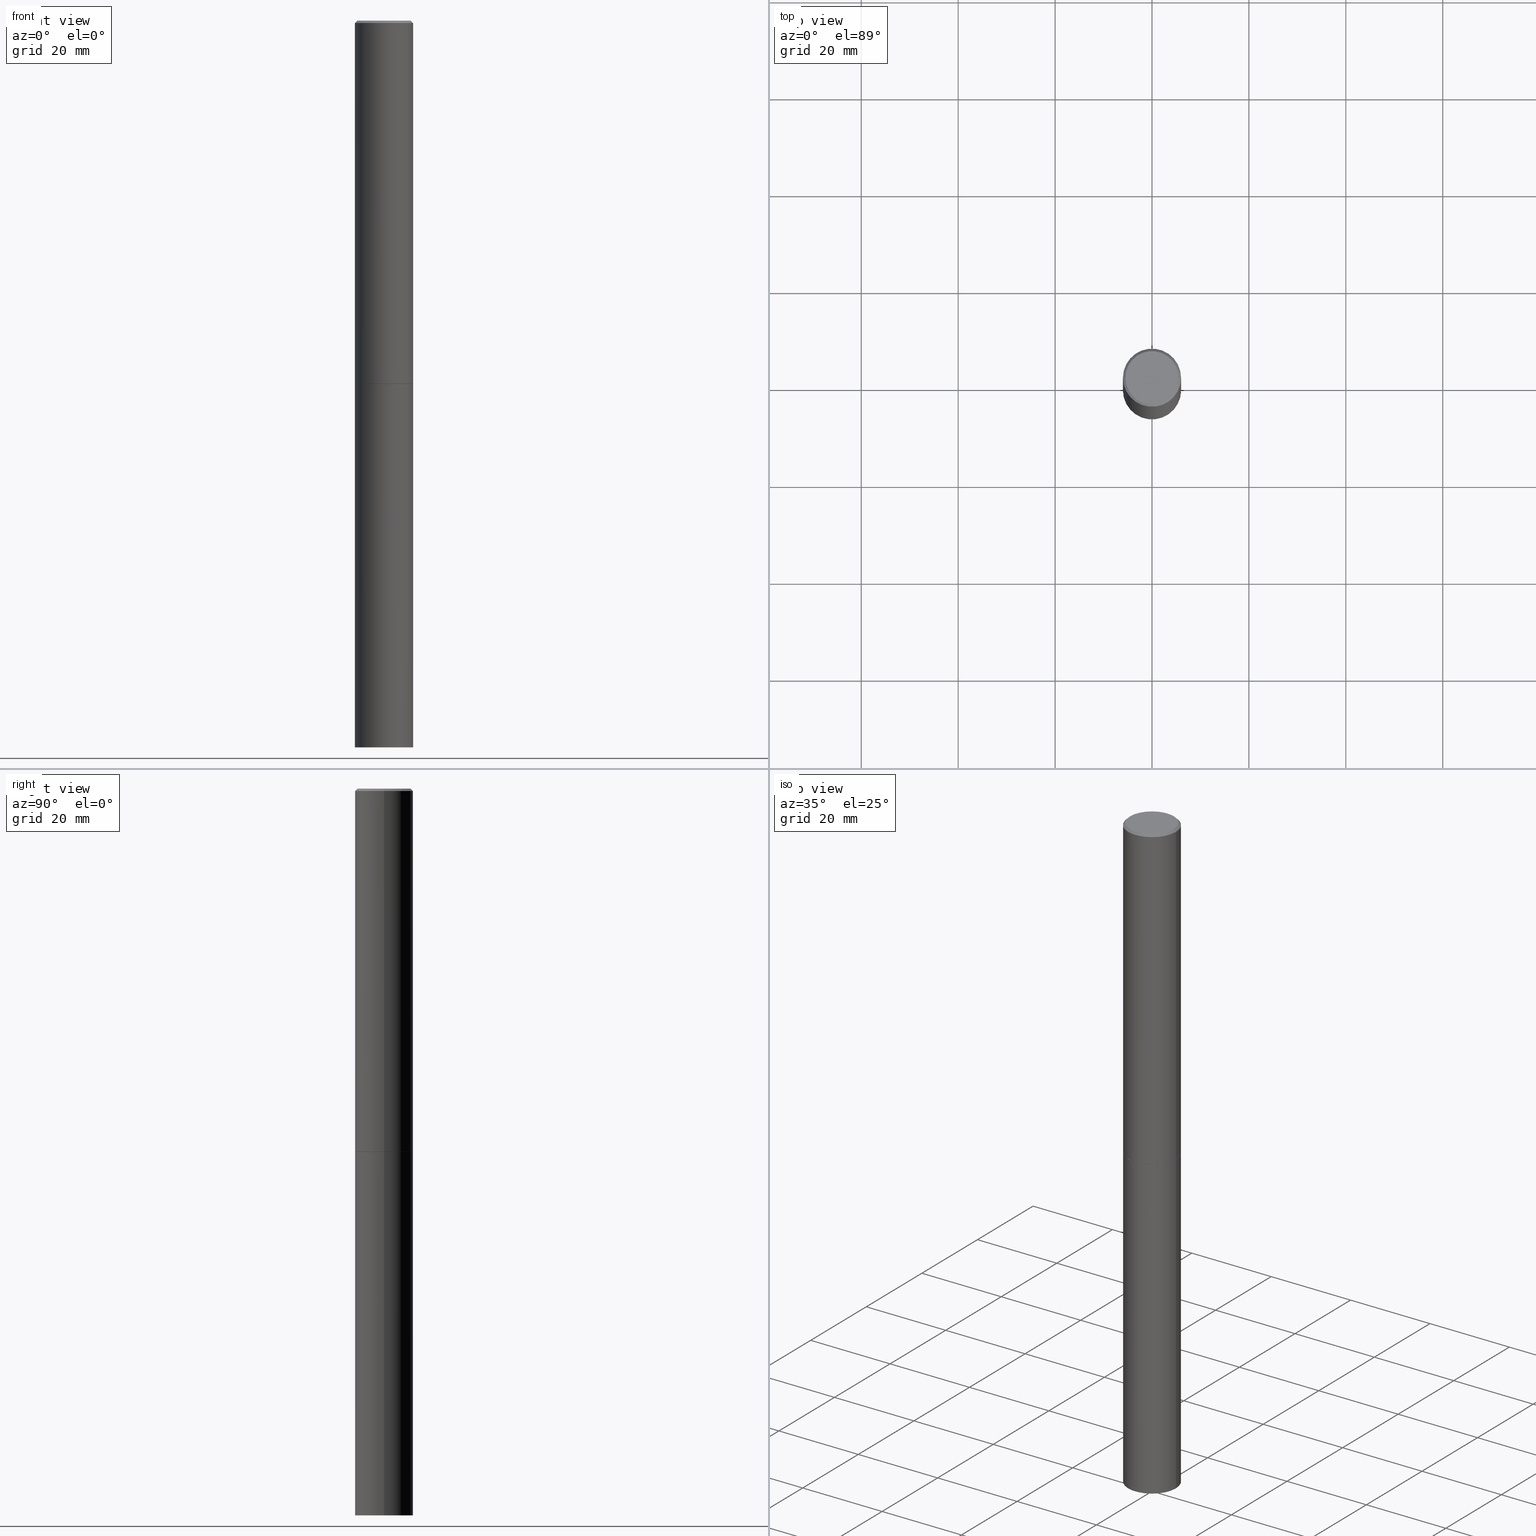
[diagram: canonical four-view strip — front | top / right | iso, engineering-drawing reading convention]
A machine part, canonical four-view strip (front | top / right | iso — engineering-drawing reading convention). The complete STEP part file that produces these views, byte-faithful:
ISO-10303-21;
HEADER;
FILE_DESCRIPTION (( 'STEP AP203' ),
    '1' );
FILE_NAME ('43545.STEP',
    '2024-02-28T04:59:49',
    ( '' ),
    ( '' ),
    'SwSTEP 2.0',
    'SolidWorks 2023',
    '' );
FILE_SCHEMA (( 'CONFIG_CONTROL_DESIGN' ));
ENDSEC;

DATA;
#1 = CLOSED_SHELL ( 'NONE', ( #190, #287, #167, #200 ) ) ;
#2 = ORGANIZATION ( 'UNSPECIFIED', 'UNSPECIFIED', '' ) ;
#3 = EDGE_CURVE ( 'NONE', #149, #126, #239, .T. ) ;
#4 = CARTESIAN_POINT ( 'NONE',  ( -1.043851414335219820E-46, 1.490343170380447200E-32, 4.268512490100411279E-18 ) ) ;
#5 = EDGE_LOOP ( 'NONE', ( #17, #94, #68, #92 ) ) ;
#6 = DIRECTION ( 'NONE',  ( -1.000000000000000000, 6.982962677686266711E-15, 0.000000000000000000 ) ) ;
#7 = ADVANCED_FACE ( 'NONE', ( #296 ), #314, .T. ) ;
#8 = AXIS2_PLACEMENT_3D ( 'NONE', #260, #288, #29 ) ;
#9 = DIRECTION ( 'NONE',  ( -2.445468806185136597E-29, 3.491481338843145583E-15, 1.000000000000000000 ) ) ;
#10 = ORIENTED_EDGE ( 'NONE', *, *, #341, .T. ) ;
#11 = PERSON_AND_ORGANIZATION ( #95, #2 ) ;
#12 = ORIENTED_EDGE ( 'NONE', *, *, #229, .F. ) ;
#13 = SHAPE_DEFINITION_REPRESENTATION ( #242, #146 ) ;
#14 = ORIENTED_EDGE ( 'NONE', *, *, #86, .F. ) ;
#15 = LOCAL_TIME ( 23, 59, 49.00000000000000000, #157 ) ;
#16 = EDGE_CURVE ( 'NONE', #144, #39, #204, .T. ) ;
#17 = ORIENTED_EDGE ( 'NONE', *, *, #20, .T. ) ;
#18 = DIRECTION ( 'NONE',  ( 1.000000000000000000, -6.982962677686266711E-15, 0.000000000000000000 ) ) ;
#19 = DIRECTION ( 'NONE',  ( -2.438088387897960049E-29, 3.491481338843145188E-15, 1.000000000000000000 ) ) ;
#20 = EDGE_CURVE ( 'NONE', #346, #88, #168, .T. ) ;
#21 = VECTOR ( 'NONE', #56, 39.37007874015748143 ) ;
#22 = CYLINDRICAL_SURFACE ( 'NONE', #30, 0.2361999999999998545 ) ;
#23 = LOCAL_TIME ( 23, 59, 49.00000000000000000, #175 ) ;
#24 = CARTESIAN_POINT ( 'NONE',  ( 0.000000000000000000, 0.000000000000000000, 0.000000000000000000 ) ) ;
#25 = CARTESIAN_POINT ( 'NONE',  ( 0.000000000000000000, 0.000000000000000000, 0.000000000000000000 ) ) ;
#26 = DIRECTION ( 'NONE',  ( -2.445468806185136597E-29, 3.491481338843145583E-15, 1.000000000000000000 ) ) ;
#27 = DIRECTION ( 'NONE',  ( -1.000000000000000000, 6.982962677686265922E-15, -4.876176775795935793E-29 ) ) ;
#28 = DIRECTION ( 'NONE',  ( 2.438088387897960049E-29, -3.491481338843145188E-15, -1.000000000000000000 ) ) ;
#29 = DIRECTION ( 'NONE',  ( 1.000000000000000000, -6.982962677686265133E-15, 0.000000000000000000 ) ) ;
#30 = AXIS2_PLACEMENT_3D ( 'NONE', #359, #277, #77 ) ;
#31 = DIRECTION ( 'NONE',  ( -1.000000000000000000, 6.982962677686265922E-15, -4.876176775795935793E-29 ) ) ;
#32 = LINE ( 'NONE', #256, #300 ) ;
#33 = CC_DESIGN_PERSON_AND_ORGANIZATION_ASSIGNMENT ( #121, #246, ( #50 ) ) ;
#34 = EDGE_LOOP ( 'NONE', ( #208, #264, #42, #151 ) ) ;
#35 = DIRECTION ( 'NONE',  ( 0.7071067811866199593, -2.468850131083015945E-15, 0.7071067811864750752 ) ) ;
#36 = APPROVAL_STATUS ( 'not_yet_approved' ) ;
#37 = CARTESIAN_POINT ( 'NONE',  ( 7.220735744022852519E-29, -1.030929694920215502E-14, -2.952700000000000102 ) ) ;
#38 = DATE_TIME_ROLE ( 'creation_date' ) ;
#39 = VERTEX_POINT ( 'NONE', #209 ) ;
#40 = ADVANCED_FACE ( 'NONE', ( #182 ), #43, .F. ) ;
#41 = VERTEX_POINT ( 'NONE', #203 ) ;
#42 = ORIENTED_EDGE ( 'NONE', *, *, #136, .T. ) ;
#43 = PLANE ( 'NONE',  #194 ) ;
#44 = APPROVAL ( #358, 'UNSPECIFIED' ) ;
#45 = COORDINATED_UNIVERSAL_TIME_OFFSET ( 5, 0, .BEHIND. ) ;
#46 = CARTESIAN_POINT ( 'NONE',  ( 7.220735744022852519E-29, -1.030929694920215502E-14, -2.952700000000000102 ) ) ;
#47 = DATE_AND_TIME ( #81, #23 ) ;
#48 = AXIS2_PLACEMENT_3D ( 'NONE', #84, #184, #27 ) ;
#49 = DIRECTION ( 'NONE',  ( 1.000000000000000000, -6.982962677686266711E-15, 4.876176775795936353E-29 ) ) ;
#50 = SECURITY_CLASSIFICATION ( '', '', #127 ) ;
#51 = COORDINATED_UNIVERSAL_TIME_OFFSET ( 5, 0, .BEHIND. ) ;
#52 = DIRECTION ( 'NONE',  ( -2.445468806185136877E-29, 3.491481338843145188E-15, 1.000000000000000000 ) ) ;
#53 = CARTESIAN_POINT ( 'NONE',  ( 0.2351999999999999924, -1.195168977099396553E-14, -2.952700000000000102 ) ) ;
#54 = CARTESIAN_POINT ( 'NONE',  ( -0.2361999999999997712, 1.579546157692631452E-15, -0.02000000000000007674 ) ) ;
#55 = LOCAL_TIME ( 23, 59, 49.00000000000000000, #302 ) ;
#56 = DIRECTION ( 'NONE',  ( -2.445468806185136877E-29, 3.491481338843145188E-15, 1.000000000000000000 ) ) ;
#57 = UNCERTAINTY_MEASURE_WITH_UNIT (LENGTH_MEASURE( 1.000000000000000082E-05 ), #366, 'distance_accuracy_value', 'NONE');
#58 = PLANE ( 'NONE',  #118 ) ;
#59 = AXIS2_PLACEMENT_3D ( 'NONE', #162, #255, #164 ) ;
#60 = ADVANCED_FACE ( 'NONE', ( #279 ), #22, .T. ) ;
#61 = DIRECTION ( 'NONE',  ( 1.000000000000000000, -6.982962677686266711E-15, 0.000000000000000000 ) ) ;
#62 = DIRECTION ( 'NONE',  ( 1.000000000000000000, -6.982962677686267499E-15, 4.876217060660161841E-29 ) ) ;
#63 = EDGE_LOOP ( 'NONE', ( #174, #71, #72, #176 ) ) ;
#64 = CALENDAR_DATE ( 2024, 27, 2 ) ;
#65 = ORIENTED_EDGE ( 'NONE', *, *, #297, .T. ) ;
#66 = AXIS2_PLACEMENT_3D ( 'NONE', #25, #108, #221 ) ;
#67 = PERSON_AND_ORGANIZATION ( #95, #2 ) ;
#68 = ORIENTED_EDGE ( 'NONE', *, *, #315, .F. ) ;
#69 = DESIGN_CONTEXT ( 'detailed design', #106, 'design' ) ;
#70 = CC_DESIGN_DATE_AND_TIME_ASSIGNMENT ( #91, #38, ( #74 ) ) ;
#71 = ORIENTED_EDGE ( 'NONE', *, *, #147, .T. ) ;
#72 = ORIENTED_EDGE ( 'NONE', *, *, #142, .T. ) ;
#73 = CIRCLE ( 'NONE', #281, 0.2361999999999999933 ) ;
#74 = PRODUCT_DEFINITION ( 'UNKNOWN', '', #220, #69 ) ;
#75 = CARTESIAN_POINT ( 'NONE',  ( 7.218290275216666916E-29, -1.030580546786331359E-14, -2.951700000000000212 ) ) ;
#76 = DIRECTION ( 'NONE',  ( 0.000000000000000000, 0.000000000000000000, 1.000000000000000000 ) ) ;
#77 = DIRECTION ( 'NONE',  ( 1.000000000000000000, -6.982962677686266711E-15, 4.876176775795935793E-29 ) ) ;
#78 = DATE_AND_TIME ( #329, #344 ) ;
#79 = DIRECTION ( 'NONE',  ( -1.000000000000000000, 6.982962677686265922E-15, -4.876176775795935793E-29 ) ) ;
#80 = MANIFOLD_SOLID_BREP ( 'Body-Move/Copy2[2]', #252 ) ;
#81 = CALENDAR_DATE ( 2024, 27, 2 ) ;
#82 = CARTESIAN_POINT ( 'NONE',  ( -0.2361999999999998545, 1.678301941865355605E-15, -1.161852468318208056E-29 ) ) ;
#83 = EDGE_CURVE ( 'NONE', #41, #290, #87, .T. ) ;
#84 = CARTESIAN_POINT ( 'NONE',  ( 1.509716530915768746E-15, 0.2161999999999997257, -7.527240092128370190E-16 ) ) ;
#85 = CYLINDRICAL_SURFACE ( 'NONE', #128, 0.2361999999999999933 ) ;
#86 = EDGE_CURVE ( 'NONE', #126, #149, #236, .T. ) ;
#87 = CIRCLE ( 'NONE', #96, 0.2161999999999997257 ) ;
#88 = VERTEX_POINT ( 'NONE', #135 ) ;
#89 = CIRCLE ( 'NONE', #8, 0.2361999999999999933 ) ;
#90 = FACE_OUTER_BOUND ( 'NONE', #312, .T. ) ;
#91 = DATE_AND_TIME ( #64, #55 ) ;
#92 = ORIENTED_EDGE ( 'NONE', *, *, #107, .F. ) ;
#93 = DATE_AND_TIME ( #119, #271 ) ;
#94 = ORIENTED_EDGE ( 'NONE', *, *, #229, .T. ) ;
#95 = PERSON ( 'UNSPECIFIED', 'UNSPECIFIED', 'UNSPECIFIED', ('UNSPECIFIED'), ('UNSPECIFIED'), ('UNSPECIFIED') ) ;
#96 = AXIS2_PLACEMENT_3D ( 'NONE', #335, #129, #247 ) ;
#97 = APPROVAL_PERSON_ORGANIZATION ( #233, #161, #275 ) ;
#98 = VERTEX_POINT ( 'NONE', #254 ) ;
#99 = ORIENTED_EDGE ( 'NONE', *, *, #308, .F. ) ;
#100 = ADVANCED_FACE ( 'NONE', ( #336 ), #189, .F. ) ;
#101 = DIRECTION ( 'NONE',  ( -2.445468806185136597E-29, 3.491481338843145583E-15, 1.000000000000000000 ) ) ;
#102 = VERTEX_POINT ( 'NONE', #137 ) ;
#103 = APPLICATION_PROTOCOL_DEFINITION ( 'international standard', 'config_control_design', 1994, #106 ) ;
#104 = FACE_OUTER_BOUND ( 'NONE', #206, .T. ) ;
#105 = CARTESIAN_POINT ( 'NONE',  ( 0.2361999999999998545, -1.649375784469495145E-15, 1.151752954442999387E-29 ) ) ;
#106 = APPLICATION_CONTEXT ( 'configuration controlled 3d designs of mechanical parts and assemblies' ) ;
#107 = EDGE_CURVE ( 'NONE', #346, #39, #357, .T. ) ;
#108 = DIRECTION ( 'NONE',  ( -2.445468806185136597E-29, 3.491481338843145583E-15, 1.000000000000000000 ) ) ;
#109 = CARTESIAN_POINT ( 'NONE',  ( 0.000000000000000000, 0.000000000000000000, 0.000000000000000000 ) ) ;
#110 = CC_DESIGN_PERSON_AND_ORGANIZATION_ASSIGNMENT ( #185, #234, ( #220 ) ) ;
#111 = DIRECTION ( 'NONE',  ( -0.7071067811865465735, 2.468850131082246805E-15, -0.7071067811865484609 ) ) ;
#112 = CARTESIAN_POINT ( 'NONE',  ( 0.2161999999999997257, -1.586759460484350213E-15, 4.268512490111238857E-18 ) ) ;
#113 = AXIS2_PLACEMENT_3D ( 'NONE', #75, #241, #354 ) ;
#114 = ORIENTED_EDGE ( 'NONE', *, *, #243, .F. ) ;
#115 =( NAMED_UNIT ( * ) SI_UNIT ( $, .STERADIAN. ) SOLID_ANGLE_UNIT ( ) );
#116 = LINE ( 'NONE', #138, #21 ) ;
#117 = LINE ( 'NONE', #345, #163 ) ;
#118 = AXIS2_PLACEMENT_3D ( 'NONE', #165, #28, #31 ) ;
#119 = CALENDAR_DATE ( 2024, 27, 2 ) ;
#120 = ORIENTED_EDGE ( 'NONE', *, *, #20, .F. ) ;
#121 = PERSON_AND_ORGANIZATION ( #95, #2 ) ;
#122 = ORIENTED_EDGE ( 'NONE', *, *, #107, .T. ) ;
#123 = ORIENTED_EDGE ( 'NONE', *, *, #331, .F. ) ;
#124 = CARTESIAN_POINT ( 'NONE',  ( 4.890937612370292426E-31, -6.982962677686317493E-17, -0.02000000000000007674 ) ) ;
#125 = ORIENTED_EDGE ( 'NONE', *, *, #219, .T. ) ;
#126 = VERTEX_POINT ( 'NONE', #53 ) ;
#127 = SECURITY_CLASSIFICATION_LEVEL ( 'unclassified' ) ;
#128 = AXIS2_PLACEMENT_3D ( 'NONE', #24, #328, #306 ) ;
#129 = DIRECTION ( 'NONE',  ( -2.445468806185136597E-29, 3.491481338843145583E-15, 1.000000000000000000 ) ) ;
#130 = CC_DESIGN_PERSON_AND_ORGANIZATION_ASSIGNMENT ( #349, #183, ( #74 ) ) ;
#131 = DIRECTION ( 'NONE',  ( -0.7071067811866199593, 7.493145998870616062E-15, 0.7071067811864750752 ) ) ;
#132 = LINE ( 'NONE', #54, #361 ) ;
#133 = VECTOR ( 'NONE', #131, 39.37007874015748143 ) ;
#134 = AXIS2_PLACEMENT_3D ( 'NONE', #202, #76, #215 ) ;
#135 = CARTESIAN_POINT ( 'NONE',  ( -0.2362000000000000210, -3.509515605454727710E-15, -2.951700000000000212 ) ) ;
#136 = EDGE_CURVE ( 'NONE', #41, #144, #132, .T. ) ;
#137 = CARTESIAN_POINT ( 'NONE',  ( 0.2361999999999999933, -1.195867273367164996E-14, -2.952700000000000102 ) ) ;
#138 = CARTESIAN_POINT ( 'NONE',  ( -0.2361999999999999933, 1.678301941865356591E-15, -1.161852468318208757E-29 ) ) ;
#139 = CARTESIAN_POINT ( 'NONE',  ( 0.2361999999999999933, -1.195518125233281011E-14, -2.951700000000000212 ) ) ;
#140 = AXIS2_PLACEMENT_3D ( 'NONE', #179, #153, #272 ) ;
#141 = ORIENTED_EDGE ( 'NONE', *, *, #331, .T. ) ;
#142 = EDGE_CURVE ( 'NONE', #293, #102, #216, .T. ) ;
#143 = CARTESIAN_POINT ( 'NONE',  ( 7.220735744022852519E-29, -1.030929694920215502E-14, -2.952700000000000102 ) ) ;
#144 = VERTEX_POINT ( 'NONE', #192 ) ;
#145 = FACE_OUTER_BOUND ( 'NONE', #235, .T. ) ;
#146 = ADVANCED_BREP_SHAPE_REPRESENTATION ( '43545', ( #324, #80, #134 ), #245 ) ;
#147 = EDGE_CURVE ( 'NONE', #171, #293, #187, .T. ) ;
#148 = APPROVAL_ROLE ( '' ) ;
#149 = VERTEX_POINT ( 'NONE', #159 ) ;
#150 = APPROVAL_ROLE ( '' ) ;
#151 = ORIENTED_EDGE ( 'NONE', *, *, #16, .T. ) ;
#152 = DIRECTION ( 'NONE',  ( -2.445468806185136597E-29, 3.491481338843145583E-15, 1.000000000000000000 ) ) ;
#153 = DIRECTION ( 'NONE',  ( -2.445468806185136597E-29, 3.491481338843145583E-15, 1.000000000000000000 ) ) ;
#154 = ORIENTED_EDGE ( 'NONE', *, *, #213, .F. ) ;
#155 = CALENDAR_DATE ( 2024, 27, 2 ) ;
#156 = FACE_OUTER_BOUND ( 'NONE', #63, .T. ) ;
#157 = COORDINATED_UNIVERSAL_TIME_OFFSET ( 5, 0, .BEHIND. ) ;
#158 = CONICAL_SURFACE ( 'NONE', #334, 0.2351999999999999924, 0.7853981633975507526 ) ;
#159 = CARTESIAN_POINT ( 'NONE',  ( -0.2351999999999999924, -8.632801980346176439E-15, -2.952700000000000102 ) ) ;
#160 = FACE_OUTER_BOUND ( 'NONE', #327, .T. ) ;
#161 = APPROVAL ( #201, 'UNSPECIFIED' ) ;
#162 = CARTESIAN_POINT ( 'NONE',  ( 1.444171603492632270E-28, -2.061894304653819197E-14, -5.905499999999999972 ) ) ;
#163 = VECTOR ( 'NONE', #35, 39.37007874015748143 ) ;
#164 = DIRECTION ( 'NONE',  ( 1.000000000000000000, -6.982962677686273021E-15, 0.000000000000000000 ) ) ;
#165 = CARTESIAN_POINT ( 'NONE',  ( 1.649375784469640295E-15, 0.2361999999999793709, -5.905500000000000860 ) ) ;
#166 = CARTESIAN_POINT ( 'NONE',  ( 0.2361999999999999933, -2.226831883100769165E-14, -5.905499999999999972 ) ) ;
#167 = ADVANCED_FACE ( 'NONE', ( #104 ), #248, .F. ) ;
#168 = CIRCLE ( 'NONE', #113, 0.2361999999999999933 ) ;
#169 = CIRCLE ( 'NONE', #362, 0.2161999999999997257 ) ;
#170 = CARTESIAN_POINT ( 'NONE',  ( 4.890937612370292426E-31, -6.982962677686317493E-17, -0.02000000000000007674 ) ) ;
#171 = VERTEX_POINT ( 'NONE', #186 ) ;
#172 = DIRECTION ( 'NONE',  ( 1.000000000000000000, -6.982962677686265133E-15, 0.000000000000000000 ) ) ;
#173 = CC_DESIGN_PERSON_AND_ORGANIZATION_ASSIGNMENT ( #332, #348, ( #193 ) ) ;
#174 = ORIENTED_EDGE ( 'NONE', *, *, #273, .F. ) ;
#175 = COORDINATED_UNIVERSAL_TIME_OFFSET ( 5, 0, .BEHIND. ) ;
#176 = ORIENTED_EDGE ( 'NONE', *, *, #219, .F. ) ;
#177 = CIRCLE ( 'NONE', #199, 0.2361999999999997712 ) ;
#178 = ORIENTED_EDGE ( 'NONE', *, *, #308, .T. ) ;
#179 = CARTESIAN_POINT ( 'NONE',  ( 7.220735744022852519E-29, -1.030929694920215502E-14, -2.952700000000000102 ) ) ;
#180 = EDGE_LOOP ( 'NONE', ( #270, #299, #323, #295 ) ) ;
#181 = VECTOR ( 'NONE', #52, 39.37007874015748143 ) ;
#182 = FACE_OUTER_BOUND ( 'NONE', #353, .T. ) ;
#183 = PERSON_AND_ORGANIZATION_ROLE ( 'creator' ) ;
#184 = DIRECTION ( 'NONE',  ( 2.438088387897960049E-29, -3.491481338843145188E-15, -1.000000000000000000 ) ) ;
#185 = PERSON_AND_ORGANIZATION ( #95, #2 ) ;
#186 = CARTESIAN_POINT ( 'NONE',  ( -0.2361999999999999933, -1.378581805600481631E-14, -5.905499999999999972 ) ) ;
#187 = CIRCLE ( 'NONE', #59, 0.2361999999999999933 ) ;
#188 = AXIS2_PLACEMENT_3D ( 'NONE', #313, #9, #172 ) ;
#189 = PLANE ( 'NONE',  #48 ) ;
#190 = ADVANCED_FACE ( 'NONE', ( #304 ), #222, .T. ) ;
#191 = DIRECTION ( 'NONE',  ( -2.445468806185136877E-29, 3.491481338843145188E-15, 1.000000000000000000 ) ) ;
#192 = CARTESIAN_POINT ( 'NONE',  ( -0.2361999999999997712, 1.579546157692631452E-15, -0.02000000000000007674 ) ) ;
#193 = PRODUCT ( '43545', '43545', '', ( #318 ) ) ;
#194 = AXIS2_PLACEMENT_3D ( 'NONE', #274, #19, #266 ) ;
#195 = EDGE_LOOP ( 'NONE', ( #154, #355, #340, #123 ) ) ;
#196 = DIRECTION ( 'NONE',  ( -2.445468806185136597E-29, 3.491481338843145583E-15, 1.000000000000000000 ) ) ;
#197 = AXIS2_PLACEMENT_3D ( 'NONE', #109, #365, #49 ) ;
#198 = CARTESIAN_POINT ( 'NONE',  ( 4.890937612370292426E-31, -6.982962677686317493E-17, -0.02000000000000007674 ) ) ;
#199 = AXIS2_PLACEMENT_3D ( 'NONE', #198, #337, #61 ) ;
#200 = ADVANCED_FACE ( 'NONE', ( #156 ), #85, .T. ) ;
#201 = APPROVAL_STATUS ( 'not_yet_approved' ) ;
#202 = CARTESIAN_POINT ( 'NONE',  ( 0.000000000000000000, 0.000000000000000000, 0.000000000000000000 ) ) ;
#203 = CARTESIAN_POINT ( 'NONE',  ( -0.2161999999999997257, 1.544631344304200197E-15, 4.268512490089730842E-18 ) ) ;
#204 = CIRCLE ( 'NONE', #298, 0.2361999999999997712 ) ;
#205 = CC_DESIGN_APPROVAL ( #207, ( #220 ) ) ;
#206 = EDGE_LOOP ( 'NONE', ( #65, #125 ) ) ;
#207 = APPROVAL ( #36, 'UNSPECIFIED' ) ;
#208 = ORIENTED_EDGE ( 'NONE', *, *, #341, .F. ) ;
#209 = CARTESIAN_POINT ( 'NONE',  ( 0.2361999999999997712, -1.690279253850497193E-15, -0.02000000000000007674 ) ) ;
#210 = AXIS2_PLACEMENT_3D ( 'NONE', #170, #232, #316 ) ;
#211 = CC_DESIGN_APPROVAL ( #161, ( #74 ) ) ;
#212 = APPROVAL_DATE_TIME ( #47, #161 ) ;
#213 = EDGE_CURVE ( 'NONE', #149, #88, #283, .T. ) ;
#214 = ORIENTED_EDGE ( 'NONE', *, *, #3, .F. ) ;
#215 = DIRECTION ( 'NONE',  ( 1.000000000000000000, 0.000000000000000000, 0.000000000000000000 ) ) ;
#216 = LINE ( 'NONE', #307, #286 ) ;
#217 = APPROVAL_DATE_TIME ( #78, #207 ) ;
#218 = DIRECTION ( 'NONE',  ( 1.000000000000000000, -6.982962677686265133E-15, 0.000000000000000000 ) ) ;
#219 = EDGE_CURVE ( 'NONE', #98, #102, #338, .T. ) ;
#220 = PRODUCT_DEFINITION_FORMATION_WITH_SPECIFIED_SOURCE ( 'ANY', '', #193, .NOT_KNOWN. ) ;
#221 = DIRECTION ( 'NONE',  ( 1.000000000000000000, -6.982962677686266711E-15, 4.876176775795935793E-29 ) ) ;
#222 = CYLINDRICAL_SURFACE ( 'NONE', #197, 0.2361999999999999933 ) ;
#223 =( LENGTH_UNIT ( ) NAMED_UNIT ( * ) SI_UNIT ( $, .METRE. ) );
#224 = APPROVAL_PERSON_ORGANIZATION ( #292, #207, #148 ) ;
#225 = DIRECTION ( 'NONE',  ( 0.7071067811865465735, -7.319954787623252890E-15, -0.7071067811865484609 ) ) ;
#226 = FACE_OUTER_BOUND ( 'NONE', #244, .T. ) ;
#227 = CARTESIAN_POINT ( 'NONE',  ( 4.890937612370292426E-31, -6.982962677686317493E-17, -0.02000000000000007674 ) ) ;
#228 = ORIENTED_EDGE ( 'NONE', *, *, #16, .F. ) ;
#229 = EDGE_CURVE ( 'NONE', #88, #144, #333, .T. ) ;
#231 = AXIS2_PLACEMENT_3D ( 'NONE', #46, #330, #309 ) ;
#230 = APPLICATION_CONTEXT ( 'configuration controlled 3d designs of mechanical parts and assemblies' ) ;
#232 = DIRECTION ( 'NONE',  ( 2.445468806185136597E-29, -3.491481338843145583E-15, -1.000000000000000000 ) ) ;
#233 = PERSON_AND_ORGANIZATION ( #95, #2 ) ;
#234 = PERSON_AND_ORGANIZATION_ROLE ( 'design_supplier' ) ;
#235 = EDGE_LOOP ( 'NONE', ( #114, #238 ) ) ;
#236 = CIRCLE ( 'NONE', #231, 0.2351999999999999924 ) ;
#237 = ADVANCED_FACE ( 'NONE', ( #160 ), #276, .T. ) ;
#238 = ORIENTED_EDGE ( 'NONE', *, *, #147, .F. ) ;
#239 = CIRCLE ( 'NONE', #140, 0.2351999999999999924 ) ;
#240 = ORIENTED_EDGE ( 'NONE', *, *, #83, .T. ) ;
#241 = DIRECTION ( 'NONE',  ( -2.445468806185136597E-29, 3.491481338843145583E-15, 1.000000000000000000 ) ) ;
#242 = PRODUCT_DEFINITION_SHAPE ( 'NONE', 'NONE',  #74 ) ;
#243 = EDGE_CURVE ( 'NONE', #293, #171, #73, .T. ) ;
#244 = EDGE_LOOP ( 'NONE', ( #99, #10, #268, #322 ) ) ;
#245 =( GEOMETRIC_REPRESENTATION_CONTEXT ( 3 ) GLOBAL_UNCERTAINTY_ASSIGNED_CONTEXT ( ( #57 ) ) GLOBAL_UNIT_ASSIGNED_CONTEXT ( ( #366, #311, #115 ) ) REPRESENTATION_CONTEXT ( 'NONE', 'WORKASPACE' ) );
#246 = PERSON_AND_ORGANIZATION_ROLE ( 'classification_officer' ) ;
#247 = DIRECTION ( 'NONE',  ( 1.000000000000000000, -6.982962677686267499E-15, 4.876217060660161841E-29 ) ) ;
#248 = PLANE ( 'NONE',  #269 ) ;
#249 = DIMENSIONAL_EXPONENTS ( 1.000000000000000000, 0.000000000000000000, 0.000000000000000000, 0.000000000000000000, 0.000000000000000000, 0.000000000000000000, 0.000000000000000000 ) ;
#250 = DIRECTION ( 'NONE',  ( -2.445468806185136877E-29, 3.491481338843145188E-15, 1.000000000000000000 ) ) ;
#251 = CC_DESIGN_DATE_AND_TIME_ASSIGNMENT ( #93, #320, ( #50 ) ) ;
#252 = CLOSED_SHELL ( 'NONE', ( #363, #60, #278, #356, #237, #7, #40, #100 ) ) ;
#253 = CONICAL_SURFACE ( 'NONE', #321, 0.2361999999999997712, 0.7853981633974469467 ) ;
#254 = CARTESIAN_POINT ( 'NONE',  ( -0.2361999999999999933, -1.378581805600481631E-14, -2.952700000000000102 ) ) ;
#255 = DIRECTION ( 'NONE',  ( -2.445468806185136597E-29, 3.491481338843145583E-15, 1.000000000000000000 ) ) ;
#256 = CARTESIAN_POINT ( 'NONE',  ( 0.2361999999999997712, -1.690279253850497193E-15, -0.02000000000000007674 ) ) ;
#257 = AXIS2_PLACEMENT_3D ( 'NONE', #37, #152, #350 ) ;
#258 = FACE_OUTER_BOUND ( 'NONE', #34, .T. ) ;
#259 = ORIENTED_EDGE ( 'NONE', *, *, #86, .T. ) ;
#260 = CARTESIAN_POINT ( 'NONE',  ( 7.218290275216666916E-29, -1.030580546786331359E-14, -2.951700000000000212 ) ) ;
#261 = CIRCLE ( 'NONE', #188, 0.2361999999999999933 ) ;
#262 = DIRECTION ( 'NONE',  ( 1.000000000000000000, -6.982962677686273021E-15, 0.000000000000000000 ) ) ;
#263 = CC_DESIGN_SECURITY_CLASSIFICATION ( #50, ( #220 ) ) ;
#264 = ORIENTED_EDGE ( 'NONE', *, *, #83, .F. ) ;
#265 = PERSON_AND_ORGANIZATION_ROLE ( 'creator' ) ;
#266 = DIRECTION ( 'NONE',  ( 1.000000000000000000, -6.982962677686265922E-15, 4.876176775795935793E-29 ) ) ;
#267 = APPROVAL_DATE_TIME ( #294, #44 ) ;
#268 = ORIENTED_EDGE ( 'NONE', *, *, #315, .T. ) ;
#269 = AXIS2_PLACEMENT_3D ( 'NONE', #364, #360, #79 ) ;
#270 = ORIENTED_EDGE ( 'NONE', *, *, #243, .T. ) ;
#271 = LOCAL_TIME ( 23, 59, 49.00000000000000000, #45 ) ;
#272 = DIRECTION ( 'NONE',  ( 1.000000000000000000, -6.982962677686268288E-15, 0.000000000000000000 ) ) ;
#273 = EDGE_CURVE ( 'NONE', #171, #98, #116, .T. ) ;
#274 = CARTESIAN_POINT ( 'NONE',  ( 7.220735744022852519E-29, -1.030929694920215502E-14, -2.952700000000000102 ) ) ;
#275 = APPROVAL_ROLE ( '' ) ;
#276 = CYLINDRICAL_SURFACE ( 'NONE', #66, 0.2361999999999998545 ) ;
#277 = DIRECTION ( 'NONE',  ( -2.445468806185136597E-29, 3.491481338843145583E-15, 1.000000000000000000 ) ) ;
#278 = ADVANCED_FACE ( 'NONE', ( #226 ), #326, .T. ) ;
#279 = FACE_OUTER_BOUND ( 'NONE', #5, .T. ) ;
#280 = CARTESIAN_POINT ( 'NONE',  ( 7.220735744022852519E-29, -1.030929694920215502E-14, -2.952700000000000102 ) ) ;
#281 = AXIS2_PLACEMENT_3D ( 'NONE', #289, #196, #262 ) ;
#282 = CC_DESIGN_APPROVAL ( #44, ( #50 ) ) ;
#283 = LINE ( 'NONE', #303, #133 ) ;
#284 = DIRECTION ( 'NONE',  ( -2.445468806185136597E-29, 3.491481338843145583E-15, 1.000000000000000000 ) ) ;
#285 = DIRECTION ( 'NONE',  ( 1.000000000000000000, -6.982962677686268288E-15, 0.000000000000000000 ) ) ;
#286 = VECTOR ( 'NONE', #250, 39.37007874015748143 ) ;
#287 = ADVANCED_FACE ( 'NONE', ( #145 ), #58, .T. ) ;
#288 = DIRECTION ( 'NONE',  ( -2.445468806185136597E-29, 3.491481338843145583E-15, 1.000000000000000000 ) ) ;
#289 = CARTESIAN_POINT ( 'NONE',  ( 1.444171603492632270E-28, -2.061894304653819197E-14, -5.905499999999999972 ) ) ;
#290 = VERTEX_POINT ( 'NONE', #112 ) ;
#291 = VECTOR ( 'NONE', #191, 39.37007874015748143 ) ;
#292 = PERSON_AND_ORGANIZATION ( #95, #2 ) ;
#293 = VERTEX_POINT ( 'NONE', #166 ) ;
#294 = DATE_AND_TIME ( #155, #15 ) ;
#295 = ORIENTED_EDGE ( 'NONE', *, *, #142, .F. ) ;
#296 = FACE_OUTER_BOUND ( 'NONE', #195, .T. ) ;
#297 = EDGE_CURVE ( 'NONE', #102, #98, #261, .T. ) ;
#298 = AXIS2_PLACEMENT_3D ( 'NONE', #124, #101, #18 ) ;
#299 = ORIENTED_EDGE ( 'NONE', *, *, #273, .T. ) ;
#300 = VECTOR ( 'NONE', #225, 39.37007874015748143 ) ;
#301 = EDGE_LOOP ( 'NONE', ( #240, #178 ) ) ;
#302 = COORDINATED_UNIVERSAL_TIME_OFFSET ( 5, 0, .BEHIND. ) ;
#303 = CARTESIAN_POINT ( 'NONE',  ( -0.2351999999999999924, -8.638100434694398841E-15, -2.952700000000000102 ) ) ;
#304 = FACE_OUTER_BOUND ( 'NONE', #180, .T. ) ;
#305 = EDGE_CURVE ( 'NONE', #126, #346, #117, .T. ) ;
#306 = DIRECTION ( 'NONE',  ( 1.000000000000000000, -6.982962677686266711E-15, 4.876176775795936353E-29 ) ) ;
#307 = CARTESIAN_POINT ( 'NONE',  ( 0.2361999999999999933, -1.649375784469496131E-15, 1.151752954443000088E-29 ) ) ;
#308 = EDGE_CURVE ( 'NONE', #290, #41, #169, .T. ) ;
#309 = DIRECTION ( 'NONE',  ( 1.000000000000000000, -6.982962677686268288E-15, 0.000000000000000000 ) ) ;
#310 = LENGTH_MEASURE_WITH_UNIT ( LENGTH_MEASURE( 0.02539999999999999897 ), #223 );
#311 =( NAMED_UNIT ( * ) PLANE_ANGLE_UNIT ( ) SI_UNIT ( $, .RADIAN. ) );
#312 = EDGE_LOOP ( 'NONE', ( #259, #352, #120, #325 ) ) ;
#313 = CARTESIAN_POINT ( 'NONE',  ( 7.220735744022852519E-29, -1.030929694920215502E-14, -2.952700000000000102 ) ) ;
#314 = CONICAL_SURFACE ( 'NONE', #257, 0.2351999999999999924, 0.7853981633975507526 ) ;
#315 = EDGE_CURVE ( 'NONE', #39, #144, #177, .T. ) ;
#316 = DIRECTION ( 'NONE',  ( -1.000000000000000000, 6.982962677686266711E-15, 0.000000000000000000 ) ) ;
#317 = DIRECTION ( 'NONE',  ( 2.445468806185136597E-29, -3.491481338843145583E-15, -1.000000000000000000 ) ) ;
#318 = MECHANICAL_CONTEXT ( 'NONE', #230, 'mechanical' ) ;
#319 = CC_DESIGN_PERSON_AND_ORGANIZATION_ASSIGNMENT ( #11, #265, ( #220 ) ) ;
#320 = DATE_TIME_ROLE ( 'classification_date' ) ;
#321 = AXIS2_PLACEMENT_3D ( 'NONE', #227, #317, #6 ) ;
#322 = ORIENTED_EDGE ( 'NONE', *, *, #136, .F. ) ;
#323 = ORIENTED_EDGE ( 'NONE', *, *, #297, .F. ) ;
#324 = MANIFOLD_SOLID_BREP ( 'Body-Move/Copy2[1]', #1 ) ;
#325 = ORIENTED_EDGE ( 'NONE', *, *, #305, .F. ) ;
#326 = CONICAL_SURFACE ( 'NONE', #210, 0.2361999999999997712, 0.7853981633974469467 ) ;
#327 = EDGE_LOOP ( 'NONE', ( #12, #141, #122, #228 ) ) ;
#328 = DIRECTION ( 'NONE',  ( -2.445468806185136597E-29, 3.491481338843145583E-15, 1.000000000000000000 ) ) ;
#329 = CALENDAR_DATE ( 2024, 27, 2 ) ;
#330 = DIRECTION ( 'NONE',  ( -2.445468806185136597E-29, 3.491481338843145583E-15, 1.000000000000000000 ) ) ;
#331 = EDGE_CURVE ( 'NONE', #88, #346, #89, .T. ) ;
#332 = PERSON_AND_ORGANIZATION ( #95, #2 ) ;
#333 = LINE ( 'NONE', #82, #181 ) ;
#334 = AXIS2_PLACEMENT_3D ( 'NONE', #143, #339, #285 ) ;
#335 = CARTESIAN_POINT ( 'NONE',  ( -1.043851414335219820E-46, 1.490343170380447200E-32, 4.268512490100411279E-18 ) ) ;
#336 = FACE_OUTER_BOUND ( 'NONE', #301, .T. ) ;
#337 = DIRECTION ( 'NONE',  ( -2.445468806185136597E-29, 3.491481338843145583E-15, 1.000000000000000000 ) ) ;
#338 = CIRCLE ( 'NONE', #343, 0.2361999999999999933 ) ;
#339 = DIRECTION ( 'NONE',  ( -2.445468806185136597E-29, 3.491481338843145583E-15, 1.000000000000000000 ) ) ;
#340 = ORIENTED_EDGE ( 'NONE', *, *, #305, .T. ) ;
#341 = EDGE_CURVE ( 'NONE', #290, #39, #32, .T. ) ;
#342 = APPLICATION_PROTOCOL_DEFINITION ( 'international standard', 'config_control_design', 1994, #230 ) ;
#343 = AXIS2_PLACEMENT_3D ( 'NONE', #280, #26, #218 ) ;
#344 = LOCAL_TIME ( 23, 59, 49.00000000000000000, #51 ) ;
#345 = CARTESIAN_POINT ( 'NONE',  ( 0.2351999999999999924, -1.195168977099396553E-14, -2.952700000000000102 ) ) ;
#346 = VERTEX_POINT ( 'NONE', #139 ) ;
#347 = PRODUCT_RELATED_PRODUCT_CATEGORY ( 'detail', '', ( #193 ) ) ;
#348 = PERSON_AND_ORGANIZATION_ROLE ( 'design_owner' ) ;
#349 = PERSON_AND_ORGANIZATION ( #95, #2 ) ;
#350 = DIRECTION ( 'NONE',  ( 1.000000000000000000, -6.982962677686268288E-15, 0.000000000000000000 ) ) ;
#351 = APPROVAL_PERSON_ORGANIZATION ( #67, #44, #150 ) ;
#352 = ORIENTED_EDGE ( 'NONE', *, *, #213, .T. ) ;
#353 = EDGE_LOOP ( 'NONE', ( #14, #214 ) ) ;
#354 = DIRECTION ( 'NONE',  ( 1.000000000000000000, -6.982962677686265133E-15, 0.000000000000000000 ) ) ;
#355 = ORIENTED_EDGE ( 'NONE', *, *, #3, .T. ) ;
#356 = ADVANCED_FACE ( 'NONE', ( #258 ), #253, .T. ) ;
#357 = LINE ( 'NONE', #105, #291 ) ;
#358 = APPROVAL_STATUS ( 'not_yet_approved' ) ;
#359 = CARTESIAN_POINT ( 'NONE',  ( 0.000000000000000000, 0.000000000000000000, 0.000000000000000000 ) ) ;
#360 = DIRECTION ( 'NONE',  ( 2.438088387897960049E-29, -3.491481338843145188E-15, -1.000000000000000000 ) ) ;
#361 = VECTOR ( 'NONE', #111, 39.37007874015748143 ) ;
#362 = AXIS2_PLACEMENT_3D ( 'NONE', #4, #284, #62 ) ;
#363 = ADVANCED_FACE ( 'NONE', ( #90 ), #158, .T. ) ;
#364 = CARTESIAN_POINT ( 'NONE',  ( 1.649375784469568312E-15, 0.2361999999999896960, -2.952700000000000990 ) ) ;
#365 = DIRECTION ( 'NONE',  ( -2.445468806185136597E-29, 3.491481338843145583E-15, 1.000000000000000000 ) ) ;
#366 =( CONVERSION_BASED_UNIT ( 'INCH', #310 ) LENGTH_UNIT ( ) NAMED_UNIT ( #249 ) );
ENDSEC;
END-ISO-10303-21;
